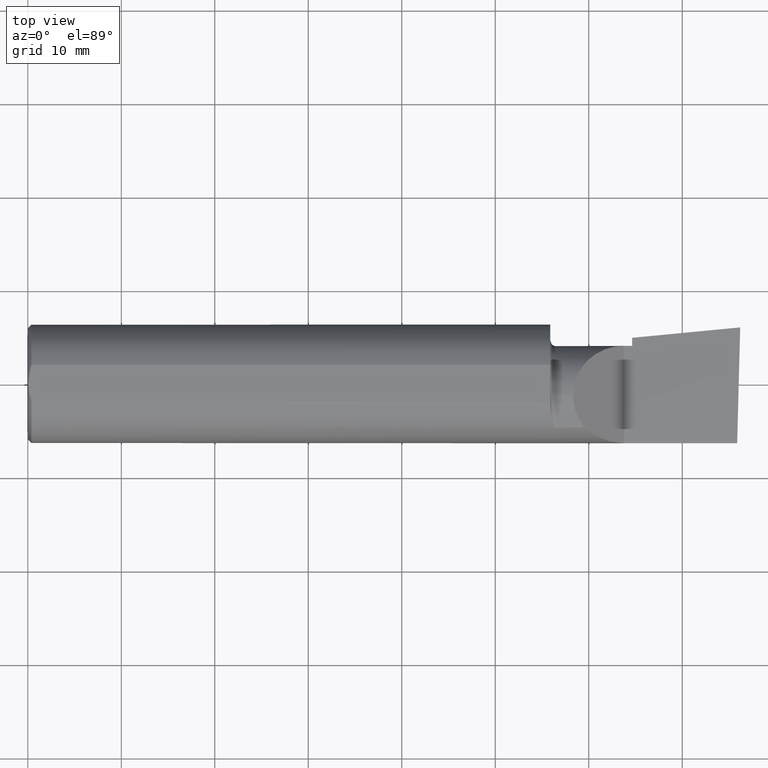
[diagram: clean part render]
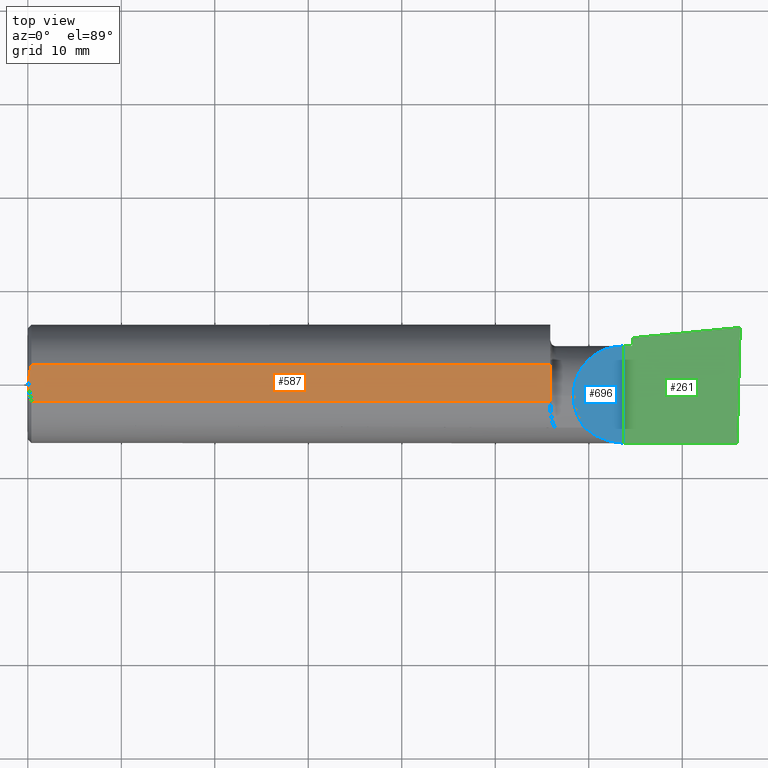
[diagram: same view with three faces highlighted in distinct colors, each labeled with its STEP entity id]
A machine part, top view with three faces highlighted in distinct colors.
Their STEP definitions:

[orange] entity #587 — the highlighted planar face has unit normal (0, -0, -1).
#1 = ORIENTED_EDGE ( 'NONE', *, *, #416, .F. ) ;
#7 = CARTESIAN_POINT ( 'NONE',  ( 2.200000000000000178, 0.07650098038587503646, 0.2378500000000000059 ) ) ;
#11 = CARTESIAN_POINT ( 'NONE',  ( 2.200000000000000178, -0.07650098038590467941, 0.2378500000000000059 ) ) ;
#16 = VERTEX_POINT ( 'NONE', #105 ) ;
#31 = DIRECTION ( 'NONE',  ( 0.0000000000000000000, -1.138839417068644240E-16, -1.000000000000000000 ) ) ;
#47 = VECTOR ( 'NONE', #90, 39.37007874015748143 ) ;
#61 = CARTESIAN_POINT ( 'NONE',  ( 2.200000000000000178, -0.04105010460296977526, 0.2378500000000000059 ) ) ;
#81 = CARTESIAN_POINT ( 'NONE',  ( 0.01499999999999999771, 0.07650098038587500870, 0.2378499999999999226 ) ) ;
#90 = DIRECTION ( 'NONE',  ( 0.0000000000000000000, -1.000000000000000000, 1.138839417068644240E-16 ) ) ;
#92 = CARTESIAN_POINT ( 'NONE',  ( 2.200001800093990489, -0.05698398688203979573, 0.2378499975680403167 ) ) ;
#94 = VERTEX_POINT ( 'NONE', #540 ) ;
#105 = CARTESIAN_POINT ( 'NONE',  ( 0.01499999999998188026, -0.07650098038590467941, 0.2378500000000000059 ) ) ;
#121 = CARTESIAN_POINT ( 'NONE',  ( 0.01120982745448973784, -0.06412238594540853320, 0.2378500000000000059 ) ) ;
#130 = FACE_OUTER_BOUND ( 'NONE', #278, .T. ) ;
#137 = EDGE_CURVE ( 'NONE', #452, #244, #160, .T. ) ;
#139 = CARTESIAN_POINT ( 'NONE',  ( 0.0000000000000000000, -0.07650098038587496707, 0.2378499999999999226 ) ) ;
#144 = CARTESIAN_POINT ( 'NONE',  ( 0.01499999999999999771, 0.07650098038587500870, 0.2378499999999999226 ) ) ;
#151 = CARTESIAN_POINT ( 'NONE',  ( 2.200000900032402118, -0.05299999999999998462, 0.2378500000000221548 ) ) ;
#152 = LINE ( 'NONE', #139, #303 ) ;
#159 = CARTESIAN_POINT ( 'NONE',  ( 2.200000000000000178, -0.04105010460296977526, 0.2378500000000000059 ) ) ;
#160 = B_SPLINE_CURVE_WITH_KNOTS ( 'NONE', 3,
 ( #235, #276, #213, #271, #574, #144 ),
 .UNSPECIFIED., .F., .F.,
 ( 4, 2, 4 ),
 ( 0.004653101494310745746, 0.005634627094920352519, 0.006616152695529959292 ),
 .UNSPECIFIED. ) ;
#167 = EDGE_CURVE ( 'NONE', #362, #311, #489, .T. ) ;
#213 = CARTESIAN_POINT ( 'NONE',  ( 0.004092330037930667214, 0.02606142970188504368, 0.2378500000000000059 ) ) ;
#215 = CARTESIAN_POINT ( 'NONE',  ( 2.200000000000000178, -0.06096394231309280876, 0.2378500000000000059 ) ) ;
#217 = CARTESIAN_POINT ( 'NONE',  ( 2.200001800035618071, -0.04901601311796455890, 0.2378500024320483464 ) ) ;
#235 = CARTESIAN_POINT ( 'NONE',  ( 0.003000000000000035624, 4.000211044293764417E-17, 0.2378500000000000059 ) ) ;
#241 = EDGE_CURVE ( 'NONE', #389, #16, #152, .T. ) ;
#244 = VERTEX_POINT ( 'NONE', #81 ) ;
#246 = CARTESIAN_POINT ( 'NONE',  ( 0.008160184410935168720, -0.05138200716576601240, 0.2378500000000000614 ) ) ;
#271 = CARTESIAN_POINT ( 'NONE',  ( 0.008199648822849016708, 0.05156445313451110679, 0.2378500000000000059 ) ) ;
#276 = CARTESIAN_POINT ( 'NONE',  ( 0.003000000000000063380, 0.01299872814765626154, 0.2378499999999999226 ) ) ;
#277 = ORIENTED_EDGE ( 'NONE', *, *, #167, .F. ) ;
#278 = EDGE_LOOP ( 'NONE', ( #277, #647, #518, #595, #423, #1, #305, #693 ) ) ;
#292 = EDGE_CURVE ( 'NONE', #16, #452, #588, .T. ) ;
#303 = VECTOR ( 'NONE', #673, 39.37007874015748143 ) ;
#305 = ORIENTED_EDGE ( 'NONE', *, *, #573, .F. ) ;
#308 = CARTESIAN_POINT ( 'NONE',  ( 0.003000000000000061211, -0.01298133447204027208, 0.2378500000000000614 ) ) ;
#311 = VERTEX_POINT ( 'NONE', #61 ) ;
#316 = LINE ( 'NONE', #457, #758 ) ;
#334 = VECTOR ( 'NONE', #748, 39.37007874015748143 ) ;
#343 = PLANE ( 'NONE',  #379 ) ;
#345 = CARTESIAN_POINT ( 'NONE',  ( 2.200000000000000178, -0.06494989539703015236, 0.2378500000000000059 ) ) ;
#347 = CARTESIAN_POINT ( 'NONE',  ( 2.200000000000000178, 0.2998500000000000609, 0.2378499999999999504 ) ) ;
#362 = VERTEX_POINT ( 'NONE', #7 ) ;
#368 = CARTESIAN_POINT ( 'NONE',  ( 0.01499999999998188026, -0.07650098038590467941, 0.2378500000000000059 ) ) ;
#379 = AXIS2_PLACEMENT_3D ( 'NONE', #742, #31, #461 ) ;
#389 = VERTEX_POINT ( 'NONE', #11 ) ;
#401 = DIRECTION ( 'NONE',  ( 1.000000000000000000, 0.0000000000000000000, 0.0000000000000000000 ) ) ;
#416 = EDGE_CURVE ( 'NONE', #619, #389, #491, .T. ) ;
#423 = ORIENTED_EDGE ( 'NONE', *, *, #241, .F. ) ;
#452 = VERTEX_POINT ( 'NONE', #697 ) ;
#456 = CARTESIAN_POINT ( 'NONE',  ( 2.200000000000000178, 0.2998500000000000609, 0.2378499999999999504 ) ) ;
#457 = CARTESIAN_POINT ( 'NONE',  ( 0.0000000000000000000, 0.07650098038587500870, 0.2378499999999999226 ) ) ;
#461 = DIRECTION ( 'NONE',  ( 0.0000000000000000000, 1.000000000000000000, -1.138839417068644240E-16 ) ) ;
#489 = LINE ( 'NONE', #456, #47 ) ;
#491 = LINE ( 'NONE', #347, #334 ) ;
#518 = ORIENTED_EDGE ( 'NONE', *, *, #137, .F. ) ;
#540 = CARTESIAN_POINT ( 'NONE',  ( 2.200000900032402118, -0.05299999999999998462, 0.2378500000000221548 ) ) ;
#565 = EDGE_CURVE ( 'NONE', #244, #362, #316, .T. ) ;
#573 = EDGE_CURVE ( 'NONE', #94, #619, #687, .T. ) ;
#574 = CARTESIAN_POINT ( 'NONE',  ( 0.01120763235350242214, 0.06411521680875356677, 0.2378500000000000336 ) ) ;
#581 = CARTESIAN_POINT ( 'NONE',  ( 2.200000000000000178, -0.04503596074371227220, 0.2378500000000000059 ) ) ;
#583 = B_SPLINE_CURVE_WITH_KNOTS ( 'NONE', 3,
 ( #159, #581, #217, #631 ),
 .UNSPECIFIED., .F., .F.,
 ( 4, 4 ),
 ( 0.0000000000000000000, 0.4999999999997253863 ),
 .UNSPECIFIED. ) ;
#587 = ADVANCED_FACE ( 'NONE', ( #130 ), #343, .F. ) ;
#588 = B_SPLINE_CURVE_WITH_KNOTS ( 'NONE', 3,
 ( #368, #121, #246, #654, #308, #716 ),
 .UNSPECIFIED., .F., .F.,
 ( 4, 2, 4 ),
 ( 0.002692677063605044066, 0.003672889278957895340, 0.004653101494310745746 ),
 .UNSPECIFIED. ) ;
#595 = ORIENTED_EDGE ( 'NONE', *, *, #292, .F. ) ;
#602 = EDGE_CURVE ( 'NONE', #311, #94, #583, .T. ) ;
#619 = VERTEX_POINT ( 'NONE', #345 ) ;
#629 = CARTESIAN_POINT ( 'NONE',  ( 2.200000000000000178, -0.06494989539703015236, 0.2378500000000000059 ) ) ;
#631 = CARTESIAN_POINT ( 'NONE',  ( 2.200000900032402118, -0.05299999999999998462, 0.2378500000000221548 ) ) ;
#647 = ORIENTED_EDGE ( 'NONE', *, *, #565, .F. ) ;
#654 = CARTESIAN_POINT ( 'NONE',  ( 0.004068542164723867871, -0.02585015905295367025, 0.2378500000000000059 ) ) ;
#673 = DIRECTION ( 'NONE',  ( -1.000000000000000000, -0.0000000000000000000, -0.0000000000000000000 ) ) ;
#687 = B_SPLINE_CURVE_WITH_KNOTS ( 'NONE', 3,
 ( #151, #92, #215, #629 ),
 .UNSPECIFIED., .F., .F.,
 ( 4, 4 ),
 ( 0.4999999999997253863, 1.000000000000000000 ),
 .UNSPECIFIED. ) ;
#693 = ORIENTED_EDGE ( 'NONE', *, *, #602, .F. ) ;
#697 = CARTESIAN_POINT ( 'NONE',  ( 0.003000000000000035624, 4.000211044293764417E-17, 0.2378500000000000059 ) ) ;
#716 = CARTESIAN_POINT ( 'NONE',  ( 0.003000000000000035624, 4.000211044293764417E-17, 0.2378500000000000059 ) ) ;
#742 = CARTESIAN_POINT ( 'NONE',  ( 3.000000000000000444, 0.2998500000000000609, 0.2378499999999999504 ) ) ;
#748 = DIRECTION ( 'NONE',  ( 0.0000000000000000000, -1.000000000000000000, 1.138839417068644240E-16 ) ) ;
#758 = VECTOR ( 'NONE', #401, 39.37007874015748143 ) ;

[blue] entity #696 — the highlighted planar face has unit normal (-0.7071, 0, -0.7071).
#25 = CARTESIAN_POINT ( 'NONE',  ( 2.313215146136121447, -0.1485302233682029571, 0.1967848538638767297 ) ) ;
#45 = VERTEX_POINT ( 'NONE', #534 ) ;
#71 = VECTOR ( 'NONE', #190, 39.37007874015748143 ) ;
#101 = CARTESIAN_POINT ( 'NONE',  ( 2.510000000000000231, -0.2498499999999999610, 6.000769315822035917E-17 ) ) ;
#114 = VERTEX_POINT ( 'NONE', #301 ) ;
#149 = CARTESIAN_POINT ( 'NONE',  ( 2.344079160038586185, -0.1868028301886760500, 0.1659208399614119644 ) ) ;
#181 = CARTESIAN_POINT ( 'NONE',  ( 2.510000000000000231, -0.2498499999999999610, 6.000769315822035917E-17 ) ) ;
#190 = DIRECTION ( 'NONE',  ( -0.0000000000000000000, 1.000000000000000000, -0.0000000000000000000 ) ) ;
#212 = CARTESIAN_POINT ( 'NONE',  ( 2.296849999999997838, -0.1021668565906553305, 0.2131500000000000061 ) ) ;
#225 = CARTESIAN_POINT ( 'NONE',  ( 2.510000000000000231, -0.2500000000000000555, 6.000769315822035917E-17 ) ) ;
#236 = LINE ( 'NONE', #553, #71 ) ;
#237 = VERTEX_POINT ( 'NONE', #267 ) ;
#258 = DIRECTION ( 'NONE',  ( -0.7071067811865436870, 0.0000000000000000000, -0.7071067811865514585 ) ) ;
#267 = CARTESIAN_POINT ( 'NONE',  ( 2.296849999999997838, -0.05299999999999998462, 0.2131499999999999506 ) ) ;
#291 = CARTESIAN_POINT ( 'NONE',  ( 2.385139620819824113, 0.1601499999999999591, 0.1248603791801747992 ) ) ;
#295 = AXIS2_PLACEMENT_3D ( 'NONE', #225, #258, #767 ) ;
#301 = CARTESIAN_POINT ( 'NONE',  ( 2.344079160038586185, -0.1868028301886760500, 0.1659208399614119644 ) ) ;
#310 = CARTESIAN_POINT ( 'NONE',  ( 2.344079160038586185, -0.1868028301886760500, 0.1659208399614119644 ) ) ;
#323 = EDGE_CURVE ( 'NONE', #439, #114, #648, .T. ) ;
#353 = PLANE ( 'NONE',  #295 ) ;
#371 = CARTESIAN_POINT ( 'NONE',  ( 2.448145753305722927, -0.2498500000000000165, 0.06185424669427665861 ) ) ;
#403 = EDGE_LOOP ( 'NONE', ( #427, #433, #709, #756 ) ) ;
#427 = ORIENTED_EDGE ( 'NONE', *, *, #545, .F. ) ;
#433 = ORIENTED_EDGE ( 'NONE', *, *, #323, .F. ) ;
#439 = VERTEX_POINT ( 'NONE', #101 ) ;
#449 = EDGE_CURVE ( 'NONE', #237, #45, #485, .T. ) ;
#468 = CARTESIAN_POINT ( 'NONE',  ( 2.296849999999997838, -0.05299999999999998462, 0.2131499999999999506 ) ) ;
#485 =( BOUNDED_CURVE ( )  B_SPLINE_CURVE ( 3, ( #468, #526, #291, #701 ),
 .UNSPECIFIED., .F., .F. ) 
 B_SPLINE_CURVE_WITH_KNOTS ( ( 4, 4 ),
 ( 0.0000000000000000000, 1.570796326794896558 ),
 .UNSPECIFIED. ) 
 CURVE ( )  GEOMETRIC_REPRESENTATION_ITEM ( )  RATIONAL_B_SPLINE_CURVE ( ( 1.000000000000000000, 0.8047378541243649375, 0.8047378541243649375, 1.000000000000000000 ) ) 
 REPRESENTATION_ITEM ( '' )  );
#526 = CARTESIAN_POINT ( 'NONE',  ( 2.296849999999997838, 0.07186037918017477988, 0.2131500000000000061 ) ) ;
#534 = CARTESIAN_POINT ( 'NONE',  ( 2.510000000000000231, 0.1601499999999998203, 6.000769315822035917E-17 ) ) ;
#545 = EDGE_CURVE ( 'NONE', #114, #237, #747, .T. ) ;
#553 = CARTESIAN_POINT ( 'NONE',  ( 2.510000000000000231, -0.2500000000000000555, 6.000769315822035917E-17 ) ) ;
#624 = CARTESIAN_POINT ( 'NONE',  ( 2.296849999999997838, -0.05299999999999998462, 0.2131499999999999506 ) ) ;
#648 =( BOUNDED_CURVE ( )  B_SPLINE_CURVE ( 3, ( #181, #371, #657, #310 ),
 .UNSPECIFIED., .F., .T. ) 
 B_SPLINE_CURVE_WITH_KNOTS ( ( 4, 4 ),
 ( 4.712388980384689674, 5.438654041019590935 ),
 .UNSPECIFIED. ) 
 CURVE ( )  GEOMETRIC_REPRESENTATION_ITEM ( )  RATIONAL_B_SPLINE_CURVE ( ( 1.000000000000000000, 0.9565258159410974237, 0.9565258159410974237, 1.000000000000000000 ) ) 
 REPRESENTATION_ITEM ( '' )  );
#657 = CARTESIAN_POINT ( 'NONE',  ( 2.390325100969863392, -0.2278791102234763166, 0.1196748990301357285 ) ) ;
#696 = ADVANCED_FACE ( 'NONE', ( #724 ), #353, .F. ) ;
#701 = CARTESIAN_POINT ( 'NONE',  ( 2.510000000000000231, 0.1601499999999998203, 6.000769315822035917E-17 ) ) ;
#709 = ORIENTED_EDGE ( 'NONE', *, *, #753, .T. ) ;
#724 = FACE_OUTER_BOUND ( 'NONE', #403, .T. ) ;
#747 =( BOUNDED_CURVE ( )  B_SPLINE_CURVE ( 3, ( #149, #25, #212, #624 ),
 .UNSPECIFIED., .F., .T. ) 
 B_SPLINE_CURVE_WITH_KNOTS ( ( 4, 4 ),
 ( 5.604538515477369032, 6.283185307179586232 ),
 .UNSPECIFIED. ) 
 CURVE ( )  GEOMETRIC_REPRESENTATION_ITEM ( )  RATIONAL_B_SPLINE_CURVE ( ( 1.000000000000000000, 0.9619867256453048521, 0.9619867256453048521, 1.000000000000000000 ) ) 
 REPRESENTATION_ITEM ( '' )  );
#753 = EDGE_CURVE ( 'NONE', #439, #45, #236, .T. ) ;
#756 = ORIENTED_EDGE ( 'NONE', *, *, #449, .F. ) ;
#767 = DIRECTION ( 'NONE',  ( -0.7071067811865513475, 0.0000000000000000000, 0.7071067811865435759 ) ) ;

[green] entity #261 — the highlighted planar face has unit normal (-0, 0, -1).
#8 = LINE ( 'NONE', #450, #135 ) ;
#20 = CARTESIAN_POINT ( 'NONE',  ( 3.000000000000000444, -0.2500000000000000555, -6.829619984160658046E-17 ) ) ;
#23 = VECTOR ( 'NONE', #73, 39.37007874015748143 ) ;
#45 = VERTEX_POINT ( 'NONE', #534 ) ;
#46 = VECTOR ( 'NONE', #318, 39.37007874015748143 ) ;
#70 = VERTEX_POINT ( 'NONE', #359 ) ;
#71 = VECTOR ( 'NONE', #190, 39.37007874015748143 ) ;
#73 = DIRECTION ( 'NONE',  ( 1.000000000000000000, 0.0000000000000000000, 0.0000000000000000000 ) ) ;
#101 = CARTESIAN_POINT ( 'NONE',  ( 2.510000000000000231, -0.2498499999999999610, 6.000769315822035917E-17 ) ) ;
#104 = DIRECTION ( 'NONE',  ( 0.0000000000000000000, 1.000000000000000000, 0.0000000000000000000 ) ) ;
#135 = VECTOR ( 'NONE', #571, 39.37007874015748143 ) ;
#143 = AXIS2_PLACEMENT_3D ( 'NONE', #20, #679, #268 ) ;
#190 = DIRECTION ( 'NONE',  ( -0.0000000000000000000, 1.000000000000000000, -0.0000000000000000000 ) ) ;
#197 = EDGE_CURVE ( 'NONE', #70, #439, #626, .T. ) ;
#236 = LINE ( 'NONE', #553, #71 ) ;
#239 = EDGE_CURVE ( 'NONE', #70, #370, #8, .T. ) ;
#261 = ADVANCED_FACE ( 'NONE', ( #282 ), #332, .F. ) ;
#268 = DIRECTION ( 'NONE',  ( -1.000000000000000000, 0.0000000000000000000, 2.618446795914836237E-16 ) ) ;
#282 = FACE_OUTER_BOUND ( 'NONE', #472, .T. ) ;
#296 = CARTESIAN_POINT ( 'NONE',  ( 2.545000000000000373, 0.1943384830701264387, 7.172376428538449649E-16 ) ) ;
#318 = DIRECTION ( 'NONE',  ( 0.9953961983671787417, 0.09584575252022460579, -2.606391986280347847E-16 ) ) ;
#319 = CARTESIAN_POINT ( 'NONE',  ( 1.878049121262586821E-31, 0.1601499999999999313, 7.172378389328440442E-16 ) ) ;
#332 = PLANE ( 'NONE',  #143 ) ;
#341 = ORIENTED_EDGE ( 'NONE', *, *, #753, .F. ) ;
#359 = CARTESIAN_POINT ( 'NONE',  ( 2.987221270274242446, -0.2498499999999999888, -6.495015745097940340E-17 ) ) ;
#363 = EDGE_CURVE ( 'NONE', #498, #370, #530, .T. ) ;
#370 = VERTEX_POINT ( 'NONE', #665 ) ;
#387 = EDGE_CURVE ( 'NONE', #45, #528, #658, .T. ) ;
#429 = ORIENTED_EDGE ( 'NONE', *, *, #239, .T. ) ;
#434 = LINE ( 'NONE', #527, #607 ) ;
#439 = VERTEX_POINT ( 'NONE', #101 ) ;
#450 = CARTESIAN_POINT ( 'NONE',  ( 2.987226101480009444, -0.2496655036952227236, -6.495142247650542032E-17 ) ) ;
#472 = EDGE_LOOP ( 'NONE', ( #683, #429, #567, #653, #582, #341 ) ) ;
#478 = VECTOR ( 'NONE', #570, 39.37007874015748143 ) ;
#498 = VERTEX_POINT ( 'NONE', #296 ) ;
#527 = CARTESIAN_POINT ( 'NONE',  ( 2.545000000000000373, -0.2500000000000000555, 5.084312937251844195E-17 ) ) ;
#528 = VERTEX_POINT ( 'NONE', #738 ) ;
#530 = LINE ( 'NONE', #722, #46 ) ;
#534 = CARTESIAN_POINT ( 'NONE',  ( 2.510000000000000231, 0.1601499999999998203, 6.000769315822035917E-17 ) ) ;
#553 = CARTESIAN_POINT ( 'NONE',  ( 2.510000000000000231, -0.2500000000000000555, 6.000769315822035917E-17 ) ) ;
#567 = ORIENTED_EDGE ( 'NONE', *, *, #363, .F. ) ;
#570 = DIRECTION ( 'NONE',  ( -1.000000000000000000, -0.0000000000000000000, -0.0000000000000000000 ) ) ;
#571 = DIRECTION ( 'NONE',  ( 0.02617694830787790569, 0.9996573249755572599, -6.854294642359119493E-18 ) ) ;
#582 = ORIENTED_EDGE ( 'NONE', *, *, #387, .F. ) ;
#607 = VECTOR ( 'NONE', #104, 39.37007874015748143 ) ;
#617 = CARTESIAN_POINT ( 'NONE',  ( 1.878049121262586821E-31, -0.2498499999999999610, 7.172378389328440442E-16 ) ) ;
#626 = LINE ( 'NONE', #617, #478 ) ;
#653 = ORIENTED_EDGE ( 'NONE', *, *, #675, .F. ) ;
#658 = LINE ( 'NONE', #319, #23 ) ;
#665 = CARTESIAN_POINT ( 'NONE',  ( 3.000000000000025313, 0.2381500000000423833, 1.300359644984189189E-13 ) ) ;
#675 = EDGE_CURVE ( 'NONE', #528, #498, #434, .T. ) ;
#679 = DIRECTION ( 'NONE',  ( -2.618446795914836237E-16, 0.0000000000000000000, -1.000000000000000000 ) ) ;
#683 = ORIENTED_EDGE ( 'NONE', *, *, #197, .F. ) ;
#722 = CARTESIAN_POINT ( 'NONE',  ( -0.02370835988220531057, -0.05299999999999998462, 7.234457468298397131E-16 ) ) ;
#738 = CARTESIAN_POINT ( 'NONE',  ( 2.545000000000000373, 0.1601499999999999591, 7.172378389328441428E-16 ) ) ;
#753 = EDGE_CURVE ( 'NONE', #439, #45, #236, .T. ) ;